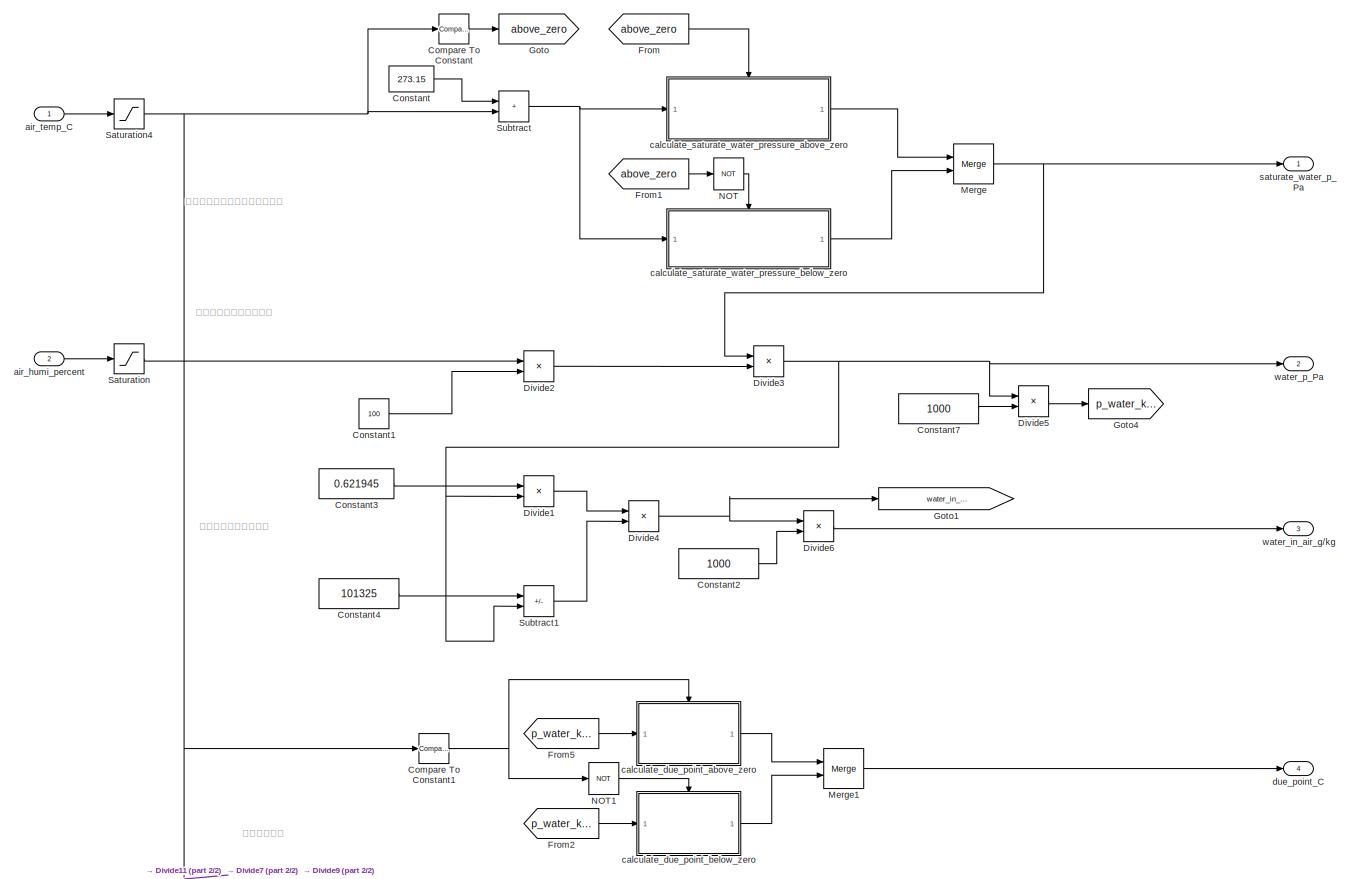
[diagram: root canvas - part 1/2, full width, middle band]
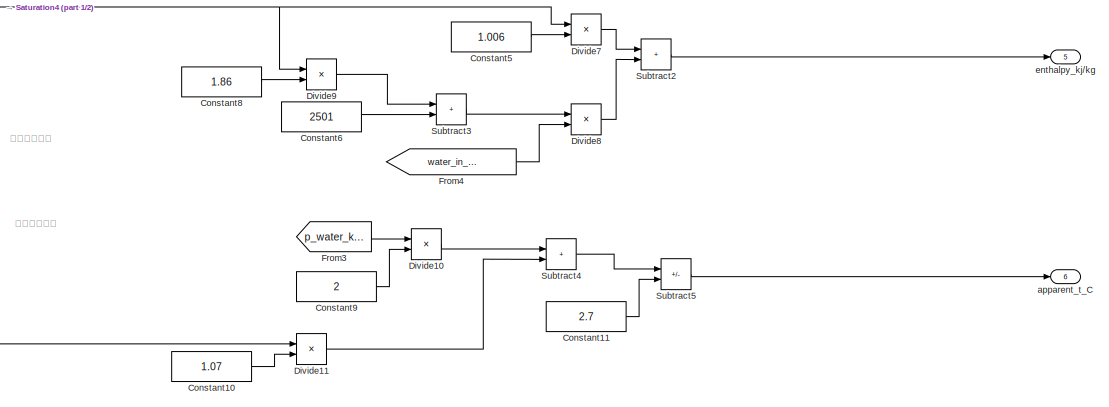
[diagram: root canvas - part 2/2, full width, bottom band]
MODEL slx_e16fa5e2ffbf
KIND model
CONFIG AbsTol = auto
CONFIG EnableMultiTasking = off
CONFIG FixedStep = auto
CONFIG MaxStep = auto
CONFIG MinStep = auto
CONFIG RelTol = 1e-3
CONFIG SampleTimeConstraint = Unconstrained
CONFIG SolverName = VariableStepAuto
CONFIG StartTime = 0.0
CONFIG StopTime = 1
BLOCK [Reference] Compare To Constant  REF=simulink/Logic and Bit
Operations/Compare
To Constant
  Ports = [1, 1]
  SourceBlock = simulink/Logic and Bit\nOperations/Compare\nTo Constant
  SourceProductBaseCode = SL
  SourceType = Compare To Constant
BLOCK [Reference] Compare To Constant1  REF=simulink/Logic and Bit
Operations/Compare
To Constant
  Ports = [1, 1]
  SourceBlock = simulink/Logic and Bit\nOperations/Compare\nTo Constant
  SourceProductBaseCode = SL
  SourceType = Compare To Constant
BLOCK [Constant] Constant
  Value = 273.15
BLOCK [Constant] Constant1
  Value = 100
BLOCK [Constant] Constant10
  Value = 1.07
BLOCK [Constant] Constant11
  Value = 2.7
BLOCK [Constant] Constant2
  Value = 1000
BLOCK [Constant] Constant3
  Value = 0.621945
BLOCK [Constant] Constant4
  Value = 101325
BLOCK [Constant] Constant5
  Value = 1.006
BLOCK [Constant] Constant6
  Value = 2501
BLOCK [Constant] Constant7
  Value = 1000
BLOCK [Constant] Constant8
  Value = 1.86
BLOCK [Constant] Constant9
  Value = 2
BLOCK [Product] Divide1
  Inputs = **
  Ports = [2, 1]
BLOCK [Product] Divide10
  Inputs = **
  Ports = [2, 1]
BLOCK [Product] Divide11
  Inputs = **
  Ports = [2, 1]
BLOCK [Product] Divide2
  Inputs = */
  Ports = [2, 1]
BLOCK [Product] Divide3
  Inputs = **
  Ports = [2, 1]
BLOCK [Product] Divide4
  Inputs = */
  Ports = [2, 1]
BLOCK [Product] Divide5
  Inputs = */
  Ports = [2, 1]
BLOCK [Product] Divide6
  Inputs = **
  Ports = [2, 1]
BLOCK [Product] Divide7
  Inputs = **
  Ports = [2, 1]
BLOCK [Product] Divide8
  Inputs = **
  Ports = [2, 1]
BLOCK [Product] Divide9
  Inputs = **
  Ports = [2, 1]
BLOCK [From] From
  GotoTag = above_zero
BLOCK [From] From1
  GotoTag = above_zero
BLOCK [From] From2
  GotoTag = p_water_kpa
BLOCK [From] From3
  GotoTag = p_water_kpa
BLOCK [From] From4
  GotoTag = water_in_air_kg_per_kg
BLOCK [From] From5
  GotoTag = p_water_kpa
BLOCK [Goto] Goto
  GotoTag = above_zero
BLOCK [Goto] Goto1
  GotoTag = water_in_air_kg_per_kg
BLOCK [Goto] Goto4
  GotoTag = p_water_kpa
BLOCK [Merge] Merge
  Ports = [2, 1]
BLOCK [Merge] Merge1
  Ports = [2, 1]
BLOCK [Logic] NOT
  AllPortsSameDT = off
  IconShape = distinctive
  Operator = NOT
  OutDataTypeStr = boolean
  Ports = [1, 1]
BLOCK [Logic] NOT1
  AllPortsSameDT = off
  IconShape = distinctive
  Operator = NOT
  OutDataTypeStr = boolean
  Ports = [1, 1]
BLOCK [Saturate] Saturation
  LowerLimit = 0.0
  UpperLimit = 100.0
BLOCK [Saturate] Saturation4
  LowerLimit = -30.0
  UpperLimit = 60.0
BLOCK [Sum] Subtract
  IconShape = rectangular
  Ports = [2, 1]
BLOCK [Sum] Subtract1
  IconShape = rectangular
  Inputs = +-
  Ports = [2, 1]
BLOCK [Sum] Subtract2
  IconShape = rectangular
  Ports = [2, 1]
BLOCK [Sum] Subtract3
  IconShape = rectangular
  Ports = [2, 1]
BLOCK [Sum] Subtract4
  IconShape = rectangular
  Ports = [2, 1]
BLOCK [Sum] Subtract5
  IconShape = rectangular
  Inputs = +-
  Ports = [2, 1]
BLOCK [Inport] air_humi_percent
  Port = 2
BLOCK [Inport] air_temp_C
BLOCK [Outport] apparent_t_C
  Port = 6
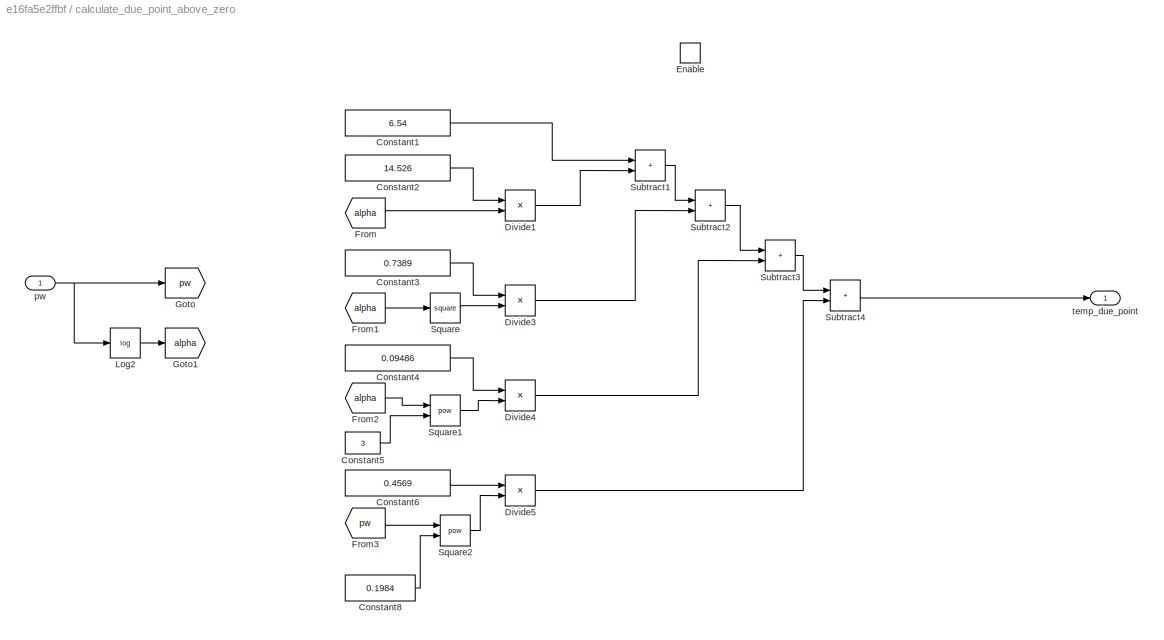
BLOCK [SubSystem] calculate_due_point_above_zero
  Ports = [1, 1, 1]
  RequestExecContextInheritance = off
BLOCK [Outport] calculate_due_point_above_zero/ temp_due_point
BLOCK [Constant] calculate_due_point_above_zero/Constant1
  OutDataTypeStr = double
  Value = 6.54
BLOCK [Constant] calculate_due_point_above_zero/Constant2
  OutDataTypeStr = double
  Value = 14.526
BLOCK [Constant] calculate_due_point_above_zero/Constant3
  OutDataTypeStr = double
  Value = 0.7389
BLOCK [Constant] calculate_due_point_above_zero/Constant4
  OutDataTypeStr = double
  Value = 0.09486
BLOCK [Constant] calculate_due_point_above_zero/Constant5
  OutDataTypeStr = double
  Value = 3
BLOCK [Constant] calculate_due_point_above_zero/Constant6
  OutDataTypeStr = double
  Value = 0.4569
BLOCK [Constant] calculate_due_point_above_zero/Constant8
  OutDataTypeStr = double
  Value = 0.1984
BLOCK [Product] calculate_due_point_above_zero/Divide1
  Inputs = **
  Ports = [2, 1]
BLOCK [Product] calculate_due_point_above_zero/Divide3
  Inputs = **
  Ports = [2, 1]
BLOCK [Product] calculate_due_point_above_zero/Divide4
  Inputs = **
  Ports = [2, 1]
BLOCK [Product] calculate_due_point_above_zero/Divide5
  Inputs = **
  Ports = [2, 1]
BLOCK [EnablePort] calculate_due_point_above_zero/Enable
  Ports = []
BLOCK [From] calculate_due_point_above_zero/From
  GotoTag = alpha
BLOCK [From] calculate_due_point_above_zero/From1
  GotoTag = alpha
BLOCK [From] calculate_due_point_above_zero/From2
  GotoTag = alpha
BLOCK [From] calculate_due_point_above_zero/From3
  GotoTag = pw
BLOCK [Goto] calculate_due_point_above_zero/Goto
  GotoTag = pw
BLOCK [Goto] calculate_due_point_above_zero/Goto1
  GotoTag = alpha
BLOCK [Math] calculate_due_point_above_zero/Log2
  Operator = log
  OutputSignalType = real
  Ports = [1, 1]
BLOCK [Math] calculate_due_point_above_zero/Square
  Operator = square
  Ports = [1, 1]
BLOCK [Math] calculate_due_point_above_zero/Square1
  Operator = pow
  Ports = [2, 1]
BLOCK [Math] calculate_due_point_above_zero/Square2
  Operator = pow
  Ports = [2, 1]
BLOCK [Sum] calculate_due_point_above_zero/Subtract1
  IconShape = rectangular
  Ports = [2, 1]
BLOCK [Sum] calculate_due_point_above_zero/Subtract2
  IconShape = rectangular
  Ports = [2, 1]
BLOCK [Sum] calculate_due_point_above_zero/Subtract3
  IconShape = rectangular
  Ports = [2, 1]
BLOCK [Sum] calculate_due_point_above_zero/Subtract4
  IconShape = rectangular
  Ports = [2, 1]
BLOCK [Inport] calculate_due_point_above_zero/pw
  OutDataTypeStr = double
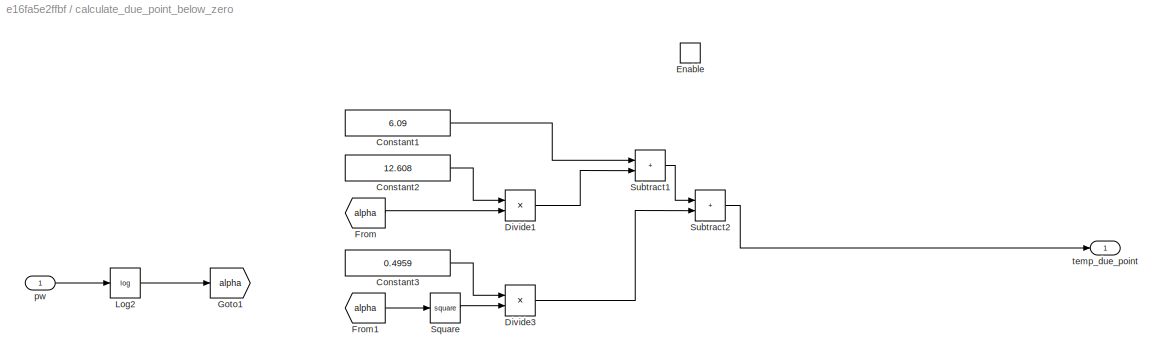
BLOCK [SubSystem] calculate_due_point_below_zero
  Ports = [1, 1, 1]
  RequestExecContextInheritance = off
BLOCK [Outport] calculate_due_point_below_zero/ temp_due_point
BLOCK [Constant] calculate_due_point_below_zero/Constant1
  OutDataTypeStr = double
  Value = 6.09
BLOCK [Constant] calculate_due_point_below_zero/Constant2
  OutDataTypeStr = double
  Value = 12.608
BLOCK [Constant] calculate_due_point_below_zero/Constant3
  OutDataTypeStr = double
  Value = 0.4959
BLOCK [Product] calculate_due_point_below_zero/Divide1
  Inputs = **
  Ports = [2, 1]
BLOCK [Product] calculate_due_point_below_zero/Divide3
  Inputs = **
  Ports = [2, 1]
BLOCK [EnablePort] calculate_due_point_below_zero/Enable
  Ports = []
BLOCK [From] calculate_due_point_below_zero/From
  GotoTag = alpha
BLOCK [From] calculate_due_point_below_zero/From1
  GotoTag = alpha
BLOCK [Goto] calculate_due_point_below_zero/Goto1
  GotoTag = alpha
BLOCK [Math] calculate_due_point_below_zero/Log2
  Operator = log
  OutputSignalType = real
  Ports = [1, 1]
BLOCK [Math] calculate_due_point_below_zero/Square
  Operator = square
  Ports = [1, 1]
BLOCK [Sum] calculate_due_point_below_zero/Subtract1
  IconShape = rectangular
  Ports = [2, 1]
BLOCK [Sum] calculate_due_point_below_zero/Subtract2
  IconShape = rectangular
  Ports = [2, 1]
BLOCK [Inport] calculate_due_point_below_zero/pw
  OutDataTypeStr = double
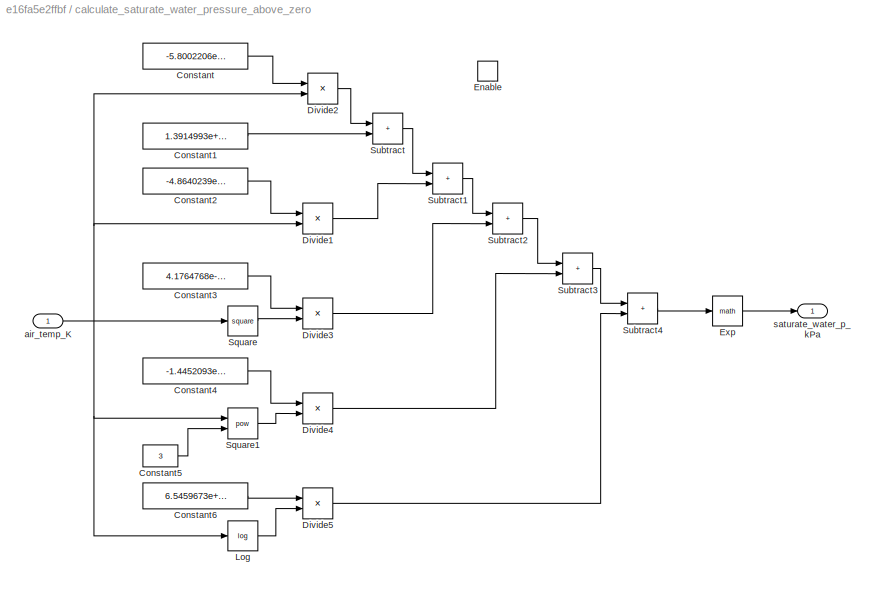
BLOCK [SubSystem] calculate_saturate_water_pressure_above_zero
  Ports = [1, 1, 1]
  RequestExecContextInheritance = off
BLOCK [Outport] calculate_saturate_water_pressure_above_zero/ saturate_water_p_kPa
  OutDataTypeStr = double
BLOCK [Constant] calculate_saturate_water_pressure_above_zero/Constant
  OutDataTypeStr = double
  Value = -5.8002206e+03
BLOCK [Constant] calculate_saturate_water_pressure_above_zero/Constant1
  OutDataTypeStr = double
  Value = 1.3914993e+00
BLOCK [Constant] calculate_saturate_water_pressure_above_zero/Constant2
  OutDataTypeStr = double
  Value = -4.8640239e-02
BLOCK [Constant] calculate_saturate_water_pressure_above_zero/Constant3
  OutDataTypeStr = double
  Value = 4.1764768e-05
BLOCK [Constant] calculate_saturate_water_pressure_above_zero/Constant4
  OutDataTypeStr = double
  Value = -1.4452093e-08
BLOCK [Constant] calculate_saturate_water_pressure_above_zero/Constant5
  OutDataTypeStr = double
  Value = 3
BLOCK [Constant] calculate_saturate_water_pressure_above_zero/Constant6
  OutDataTypeStr = double
  Value = 6.5459673e+00
BLOCK [Product] calculate_saturate_water_pressure_above_zero/Divide1
  Inputs = **
  Ports = [2, 1]
BLOCK [Product] calculate_saturate_water_pressure_above_zero/Divide2
  Inputs = */
  Ports = [2, 1]
BLOCK [Product] calculate_saturate_water_pressure_above_zero/Divide3
  Inputs = **
  Ports = [2, 1]
BLOCK [Product] calculate_saturate_water_pressure_above_zero/Divide4
  Inputs = **
  Ports = [2, 1]
BLOCK [Product] calculate_saturate_water_pressure_above_zero/Divide5
  Inputs = **
  Ports = [2, 1]
BLOCK [EnablePort] calculate_saturate_water_pressure_above_zero/Enable
  Ports = []
BLOCK [Math] calculate_saturate_water_pressure_above_zero/Exp
  Ports = [1, 1]
BLOCK [Math] calculate_saturate_water_pressure_above_zero/Log
  Operator = log
  OutputSignalType = real
  Ports = [1, 1]
BLOCK [Math] calculate_saturate_water_pressure_above_zero/Square
  Operator = square
  Ports = [1, 1]
BLOCK [Math] calculate_saturate_water_pressure_above_zero/Square1
  Operator = pow
  Ports = [2, 1]
BLOCK [Sum] calculate_saturate_water_pressure_above_zero/Subtract
  IconShape = rectangular
  Ports = [2, 1]
BLOCK [Sum] calculate_saturate_water_pressure_above_zero/Subtract1
  IconShape = rectangular
  Ports = [2, 1]
BLOCK [Sum] calculate_saturate_water_pressure_above_zero/Subtract2
  IconShape = rectangular
  Ports = [2, 1]
BLOCK [Sum] calculate_saturate_water_pressure_above_zero/Subtract3
  IconShape = rectangular
  Ports = [2, 1]
BLOCK [Sum] calculate_saturate_water_pressure_above_zero/Subtract4
  IconShape = rectangular
  Ports = [2, 1]
BLOCK [Inport] calculate_saturate_water_pressure_above_zero/air_temp_K
  OutDataTypeStr = double
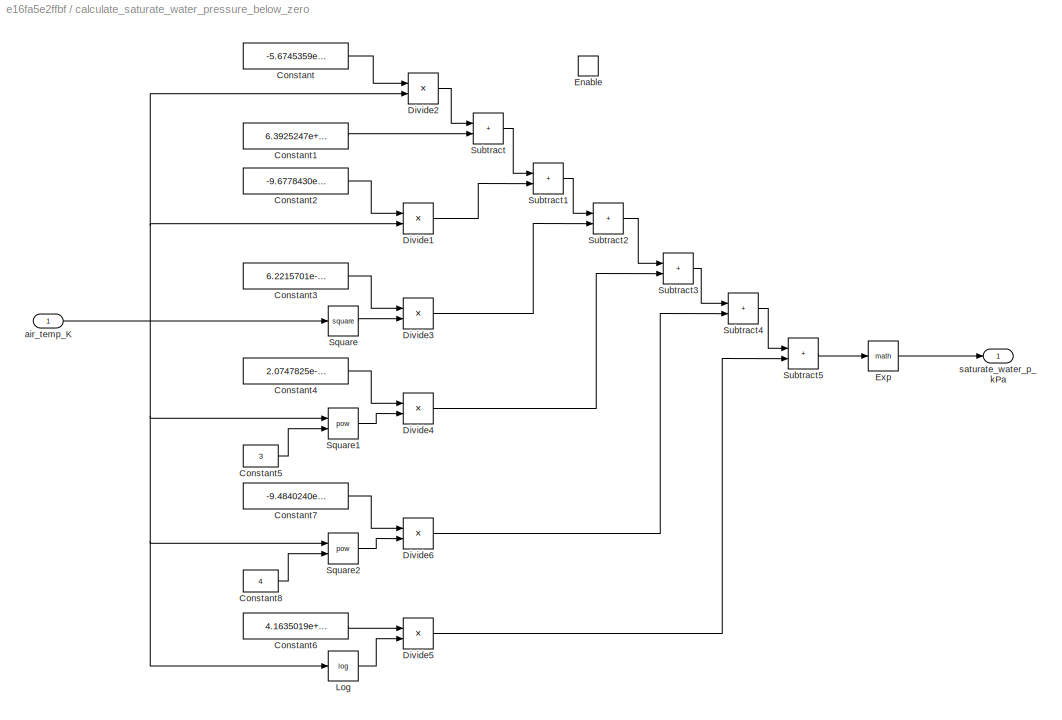
BLOCK [SubSystem] calculate_saturate_water_pressure_below_zero
  Ports = [1, 1, 1]
  RequestExecContextInheritance = off
BLOCK [Outport] calculate_saturate_water_pressure_below_zero/ saturate_water_p_kPa
  OutDataTypeStr = double
BLOCK [Constant] calculate_saturate_water_pressure_below_zero/Constant
  OutDataTypeStr = double
  Value = -5.6745359e+03
BLOCK [Constant] calculate_saturate_water_pressure_below_zero/Constant1
  OutDataTypeStr = double
  Value = 6.3925247e+00
BLOCK [Constant] calculate_saturate_water_pressure_below_zero/Constant2
  OutDataTypeStr = double
  Value = -9.6778430e-03
BLOCK [Constant] calculate_saturate_water_pressure_below_zero/Constant3
  OutDataTypeStr = double
  Value = 6.2215701e-07
BLOCK [Constant] calculate_saturate_water_pressure_below_zero/Constant4
  OutDataTypeStr = double
  Value = 2.0747825e-09
BLOCK [Constant] calculate_saturate_water_pressure_below_zero/Constant5
  OutDataTypeStr = double
  Value = 3
BLOCK [Constant] calculate_saturate_water_pressure_below_zero/Constant6
  OutDataTypeStr = double
  Value = 4.1635019e+00
BLOCK [Constant] calculate_saturate_water_pressure_below_zero/Constant7
  OutDataTypeStr = double
  Value = -9.4840240e-13
BLOCK [Constant] calculate_saturate_water_pressure_below_zero/Constant8
  OutDataTypeStr = double
  Value = 4
BLOCK [Product] calculate_saturate_water_pressure_below_zero/Divide1
  Inputs = **
  Ports = [2, 1]
BLOCK [Product] calculate_saturate_water_pressure_below_zero/Divide2
  Inputs = */
  Ports = [2, 1]
BLOCK [Product] calculate_saturate_water_pressure_below_zero/Divide3
  Inputs = **
  Ports = [2, 1]
BLOCK [Product] calculate_saturate_water_pressure_below_zero/Divide4
  Inputs = **
  Ports = [2, 1]
BLOCK [Product] calculate_saturate_water_pressure_below_zero/Divide5
  Inputs = **
  Ports = [2, 1]
BLOCK [Product] calculate_saturate_water_pressure_below_zero/Divide6
  Inputs = **
  Ports = [2, 1]
BLOCK [EnablePort] calculate_saturate_water_pressure_below_zero/Enable
  Ports = []
BLOCK [Math] calculate_saturate_water_pressure_below_zero/Exp
  Ports = [1, 1]
BLOCK [Math] calculate_saturate_water_pressure_below_zero/Log
  Operator = log
  OutputSignalType = real
  Ports = [1, 1]
BLOCK [Math] calculate_saturate_water_pressure_below_zero/Square
  Operator = square
  Ports = [1, 1]
BLOCK [Math] calculate_saturate_water_pressure_below_zero/Square1
  Operator = pow
  Ports = [2, 1]
BLOCK [Math] calculate_saturate_water_pressure_below_zero/Square2
  Operator = pow
  Ports = [2, 1]
BLOCK [Sum] calculate_saturate_water_pressure_below_zero/Subtract
  IconShape = rectangular
  Ports = [2, 1]
BLOCK [Sum] calculate_saturate_water_pressure_below_zero/Subtract1
  IconShape = rectangular
  Ports = [2, 1]
BLOCK [Sum] calculate_saturate_water_pressure_below_zero/Subtract2
  IconShape = rectangular
  Ports = [2, 1]
BLOCK [Sum] calculate_saturate_water_pressure_below_zero/Subtract3
  IconShape = rectangular
  Ports = [2, 1]
BLOCK [Sum] calculate_saturate_water_pressure_below_zero/Subtract4
  IconShape = rectangular
  Ports = [2, 1]
BLOCK [Sum] calculate_saturate_water_pressure_below_zero/Subtract5
  IconShape = rectangular
  Ports = [2, 1]
BLOCK [Inport] calculate_saturate_water_pressure_below_zero/air_temp_K
  OutDataTypeStr = double
BLOCK [Outport] due_point_C
  Port = 4
BLOCK [Outport] enthalpy_kj//kg
  Port = 5
BLOCK [Outport] saturate_water_p_Pa
BLOCK [Outport] water_in_air_g//kg
  Port = 3
BLOCK [Outport] water_p_Pa
  Port = 2
ANNOTATION (root): 计算当前温度下饱和水蒸气压力
ANNOTATION (root): 计算体感温度
ANNOTATION (root): 计算当前实际水蒸气压力
ANNOTATION (root): 计算当前湿空气含湿量
ANNOTATION (root): 计算空气比焓
ANNOTATION (root): 计算露点温度
NET Compare To Constant1:1 -> NOT1:1, calculate_due_point_above_zero:enable
LINE Compare To Constant:1 -> Goto:1
LINE Constant10:1 -> Divide11:2
LINE Constant11:1 -> Subtract5:2
LINE Constant1:1 -> Divide2:2
LINE Constant2:1 -> Divide6:2
LINE Constant3:1 -> Divide1:1
LINE Constant4:1 -> Subtract1:1
LINE Constant5:1 -> Divide7:2
LINE Constant6:1 -> Subtract3:2
LINE Constant7:1 -> Divide5:2
LINE Constant8:1 -> Divide9:2
LINE Constant9:1 -> Divide10:2
LINE Constant:1 -> Subtract:1
LINE Divide10:1 -> Subtract4:1
LINE Divide11:1 -> Subtract4:2
LINE Divide1:1 -> Divide4:1
LINE Divide2:1 -> Divide3:2
NET Divide3:1 -> Divide1:2, Divide5:1, Subtract1:2, water_p_Pa:1
NET Divide4:1 -> Divide6:1, Goto1:1
LINE Divide5:1 -> Goto4:1
LINE Divide6:1 -> water_in_air_g//kg:1
LINE Divide7:1 -> Subtract2:1
LINE Divide8:1 -> Subtract2:2
LINE Divide9:1 -> Subtract3:1
LINE From1:1 -> NOT:1
LINE From2:1 -> calculate_due_point_below_zero:1
LINE From3:1 -> Divide10:1
LINE From4:1 -> Divide8:2
LINE From5:1 -> calculate_due_point_above_zero:1
LINE From:1 -> calculate_saturate_water_pressure_above_zero:enable
LINE Merge1:1 -> due_point_C:1
NET Merge:1 -> Divide3:1, saturate_water_p_Pa:1
LINE NOT1:1 -> calculate_due_point_below_zero:enable
LINE NOT:1 -> calculate_saturate_water_pressure_below_zero:enable
NET Saturation4:1 -> Compare To Constant1:1, Compare To Constant:1, Divide11:1, Divide7:1, Divide9:1, Subtract:2
LINE Saturation:1 -> Divide2:1
LINE Subtract1:1 -> Divide4:2
LINE Subtract2:1 -> enthalpy_kj//kg:1
LINE Subtract3:1 -> Divide8:1
LINE Subtract4:1 -> Subtract5:1
LINE Subtract5:1 -> apparent_t_C:1
NET Subtract:1 -> calculate_saturate_water_pressure_above_zero:1, calculate_saturate_water_pressure_below_zero:1
LINE air_humi_percent:1 -> Saturation:1
LINE air_temp_C:1 -> Saturation4:1
LINE calculate_due_point_above_zero/Constant1:1 -> calculate_due_point_above_zero/Subtract1:1
LINE calculate_due_point_above_zero/Constant2:1 -> calculate_due_point_above_zero/Divide1:1
LINE calculate_due_point_above_zero/Constant3:1 -> calculate_due_point_above_zero/Divide3:1
LINE calculate_due_point_above_zero/Constant4:1 -> calculate_due_point_above_zero/Divide4:1
LINE calculate_due_point_above_zero/Constant5:1 -> calculate_due_point_above_zero/Square1:2
LINE calculate_due_point_above_zero/Constant6:1 -> calculate_due_point_above_zero/Divide5:1
LINE calculate_due_point_above_zero/Constant8:1 -> calculate_due_point_above_zero/Square2:2
LINE calculate_due_point_above_zero/Divide1:1 -> calculate_due_point_above_zero/Subtract1:2
LINE calculate_due_point_above_zero/Divide3:1 -> calculate_due_point_above_zero/Subtract2:2
LINE calculate_due_point_above_zero/Divide4:1 -> calculate_due_point_above_zero/Subtract3:2
LINE calculate_due_point_above_zero/Divide5:1 -> calculate_due_point_above_zero/Subtract4:2
LINE calculate_due_point_above_zero/From1:1 -> calculate_due_point_above_zero/Square:1
LINE calculate_due_point_above_zero/From2:1 -> calculate_due_point_above_zero/Square1:1
LINE calculate_due_point_above_zero/From3:1 -> calculate_due_point_above_zero/Square2:1
LINE calculate_due_point_above_zero/From:1 -> calculate_due_point_above_zero/Divide1:2
LINE calculate_due_point_above_zero/Log2:1 -> calculate_due_point_above_zero/Goto1:1
LINE calculate_due_point_above_zero/Square1:1 -> calculate_due_point_above_zero/Divide4:2
LINE calculate_due_point_above_zero/Square2:1 -> calculate_due_point_above_zero/Divide5:2
LINE calculate_due_point_above_zero/Square:1 -> calculate_due_point_above_zero/Divide3:2
LINE calculate_due_point_above_zero/Subtract1:1 -> calculate_due_point_above_zero/Subtract2:1
LINE calculate_due_point_above_zero/Subtract2:1 -> calculate_due_point_above_zero/Subtract3:1
LINE calculate_due_point_above_zero/Subtract3:1 -> calculate_due_point_above_zero/Subtract4:1
LINE calculate_due_point_above_zero/Subtract4:1 -> calculate_due_point_above_zero/ temp_due_point:1
NET calculate_due_point_above_zero/pw:1 -> calculate_due_point_above_zero/Goto:1, calculate_due_point_above_zero/Log2:1
LINE calculate_due_point_above_zero:1 -> Merge1:1
LINE calculate_due_point_below_zero/Constant1:1 -> calculate_due_point_below_zero/Subtract1:1
LINE calculate_due_point_below_zero/Constant2:1 -> calculate_due_point_below_zero/Divide1:1
LINE calculate_due_point_below_zero/Constant3:1 -> calculate_due_point_below_zero/Divide3:1
LINE calculate_due_point_below_zero/Divide1:1 -> calculate_due_point_below_zero/Subtract1:2
LINE calculate_due_point_below_zero/Divide3:1 -> calculate_due_point_below_zero/Subtract2:2
LINE calculate_due_point_below_zero/From1:1 -> calculate_due_point_below_zero/Square:1
LINE calculate_due_point_below_zero/From:1 -> calculate_due_point_below_zero/Divide1:2
LINE calculate_due_point_below_zero/Log2:1 -> calculate_due_point_below_zero/Goto1:1
LINE calculate_due_point_below_zero/Square:1 -> calculate_due_point_below_zero/Divide3:2
LINE calculate_due_point_below_zero/Subtract1:1 -> calculate_due_point_below_zero/Subtract2:1
LINE calculate_due_point_below_zero/Subtract2:1 -> calculate_due_point_below_zero/ temp_due_point:1
LINE calculate_due_point_below_zero/pw:1 -> calculate_due_point_below_zero/Log2:1
LINE calculate_due_point_below_zero:1 -> Merge1:2
LINE calculate_saturate_water_pressure_above_zero/Constant1:1 -> calculate_saturate_water_pressure_above_zero/Subtract:2
LINE calculate_saturate_water_pressure_above_zero/Constant2:1 -> calculate_saturate_water_pressure_above_zero/Divide1:1
LINE calculate_saturate_water_pressure_above_zero/Constant3:1 -> calculate_saturate_water_pressure_above_zero/Divide3:1
LINE calculate_saturate_water_pressure_above_zero/Constant4:1 -> calculate_saturate_water_pressure_above_zero/Divide4:1
LINE calculate_saturate_water_pressure_above_zero/Constant5:1 -> calculate_saturate_water_pressure_above_zero/Square1:2
LINE calculate_saturate_water_pressure_above_zero/Constant6:1 -> calculate_saturate_water_pressure_above_zero/Divide5:1
LINE calculate_saturate_water_pressure_above_zero/Constant:1 -> calculate_saturate_water_pressure_above_zero/Divide2:1
LINE calculate_saturate_water_pressure_above_zero/Divide1:1 -> calculate_saturate_water_pressure_above_zero/Subtract1:2
LINE calculate_saturate_water_pressure_above_zero/Divide2:1 -> calculate_saturate_water_pressure_above_zero/Subtract:1
LINE calculate_saturate_water_pressure_above_zero/Divide3:1 -> calculate_saturate_water_pressure_above_zero/Subtract2:2
LINE calculate_saturate_water_pressure_above_zero/Divide4:1 -> calculate_saturate_water_pressure_above_zero/Subtract3:2
LINE calculate_saturate_water_pressure_above_zero/Divide5:1 -> calculate_saturate_water_pressure_above_zero/Subtract4:2
LINE calculate_saturate_water_pressure_above_zero/Exp:1 -> calculate_saturate_water_pressure_above_zero/ saturate_water_p_kPa:1
LINE calculate_saturate_water_pressure_above_zero/Log:1 -> calculate_saturate_water_pressure_above_zero/Divide5:2
LINE calculate_saturate_water_pressure_above_zero/Square1:1 -> calculate_saturate_water_pressure_above_zero/Divide4:2
LINE calculate_saturate_water_pressure_above_zero/Square:1 -> calculate_saturate_water_pressure_above_zero/Divide3:2
LINE calculate_saturate_water_pressure_above_zero/Subtract1:1 -> calculate_saturate_water_pressure_above_zero/Subtract2:1
LINE calculate_saturate_water_pressure_above_zero/Subtract2:1 -> calculate_saturate_water_pressure_above_zero/Subtract3:1
LINE calculate_saturate_water_pressure_above_zero/Subtract3:1 -> calculate_saturate_water_pressure_above_zero/Subtract4:1
LINE calculate_saturate_water_pressure_above_zero/Subtract4:1 -> calculate_saturate_water_pressure_above_zero/Exp:1
LINE calculate_saturate_water_pressure_above_zero/Subtract:1 -> calculate_saturate_water_pressure_above_zero/Subtract1:1
NET calculate_saturate_water_pressure_above_zero/air_temp_K:1 -> calculate_saturate_water_pressure_above_zero/Divide1:2, calculate_saturate_water_pressure_above_zero/Divide2:2, calculate_saturate_water_pressure_above_zero/Log:1, calculate_saturate_water_pressure_above_zero/Square1:1, calculate_saturate_water_pressure_above_zero/Square:1
LINE calculate_saturate_water_pressure_above_zero:1 -> Merge:1
LINE calculate_saturate_water_pressure_below_zero/Constant1:1 -> calculate_saturate_water_pressure_below_zero/Subtract:2
LINE calculate_saturate_water_pressure_below_zero/Constant2:1 -> calculate_saturate_water_pressure_below_zero/Divide1:1
LINE calculate_saturate_water_pressure_below_zero/Constant3:1 -> calculate_saturate_water_pressure_below_zero/Divide3:1
LINE calculate_saturate_water_pressure_below_zero/Constant4:1 -> calculate_saturate_water_pressure_below_zero/Divide4:1
LINE calculate_saturate_water_pressure_below_zero/Constant5:1 -> calculate_saturate_water_pressure_below_zero/Square1:2
LINE calculate_saturate_water_pressure_below_zero/Constant6:1 -> calculate_saturate_water_pressure_below_zero/Divide5:1
LINE calculate_saturate_water_pressure_below_zero/Constant7:1 -> calculate_saturate_water_pressure_below_zero/Divide6:1
LINE calculate_saturate_water_pressure_below_zero/Constant8:1 -> calculate_saturate_water_pressure_below_zero/Square2:2
LINE calculate_saturate_water_pressure_below_zero/Constant:1 -> calculate_saturate_water_pressure_below_zero/Divide2:1
LINE calculate_saturate_water_pressure_below_zero/Divide1:1 -> calculate_saturate_water_pressure_below_zero/Subtract1:2
LINE calculate_saturate_water_pressure_below_zero/Divide2:1 -> calculate_saturate_water_pressure_below_zero/Subtract:1
LINE calculate_saturate_water_pressure_below_zero/Divide3:1 -> calculate_saturate_water_pressure_below_zero/Subtract2:2
LINE calculate_saturate_water_pressure_below_zero/Divide4:1 -> calculate_saturate_water_pressure_below_zero/Subtract3:2
LINE calculate_saturate_water_pressure_below_zero/Divide5:1 -> calculate_saturate_water_pressure_below_zero/Subtract5:2
LINE calculate_saturate_water_pressure_below_zero/Divide6:1 -> calculate_saturate_water_pressure_below_zero/Subtract4:2
LINE calculate_saturate_water_pressure_below_zero/Exp:1 -> calculate_saturate_water_pressure_below_zero/ saturate_water_p_kPa:1
LINE calculate_saturate_water_pressure_below_zero/Log:1 -> calculate_saturate_water_pressure_below_zero/Divide5:2
LINE calculate_saturate_water_pressure_below_zero/Square1:1 -> calculate_saturate_water_pressure_below_zero/Divide4:2
LINE calculate_saturate_water_pressure_below_zero/Square2:1 -> calculate_saturate_water_pressure_below_zero/Divide6:2
LINE calculate_saturate_water_pressure_below_zero/Square:1 -> calculate_saturate_water_pressure_below_zero/Divide3:2
LINE calculate_saturate_water_pressure_below_zero/Subtract1:1 -> calculate_saturate_water_pressure_below_zero/Subtract2:1
LINE calculate_saturate_water_pressure_below_zero/Subtract2:1 -> calculate_saturate_water_pressure_below_zero/Subtract3:1
LINE calculate_saturate_water_pressure_below_zero/Subtract3:1 -> calculate_saturate_water_pressure_below_zero/Subtract4:1
LINE calculate_saturate_water_pressure_below_zero/Subtract4:1 -> calculate_saturate_water_pressure_below_zero/Subtract5:1
LINE calculate_saturate_water_pressure_below_zero/Subtract5:1 -> calculate_saturate_water_pressure_below_zero/Exp:1
LINE calculate_saturate_water_pressure_below_zero/Subtract:1 -> calculate_saturate_water_pressure_below_zero/Subtract1:1
NET calculate_saturate_water_pressure_below_zero/air_temp_K:1 -> calculate_saturate_water_pressure_below_zero/Divide1:2, calculate_saturate_water_pressure_below_zero/Divide2:2, calculate_saturate_water_pressure_below_zero/Log:1, calculate_saturate_water_pressure_below_zero/Square1:1, calculate_saturate_water_pressure_below_zero/Square2:1, calculate_saturate_water_pressure_below_zero/Square:1
LINE calculate_saturate_water_pressure_below_zero:1 -> Merge:2
note: NET lines group one-source signal fan-out (src -> all destinations, sorted); 1:1 wires keep LINE
